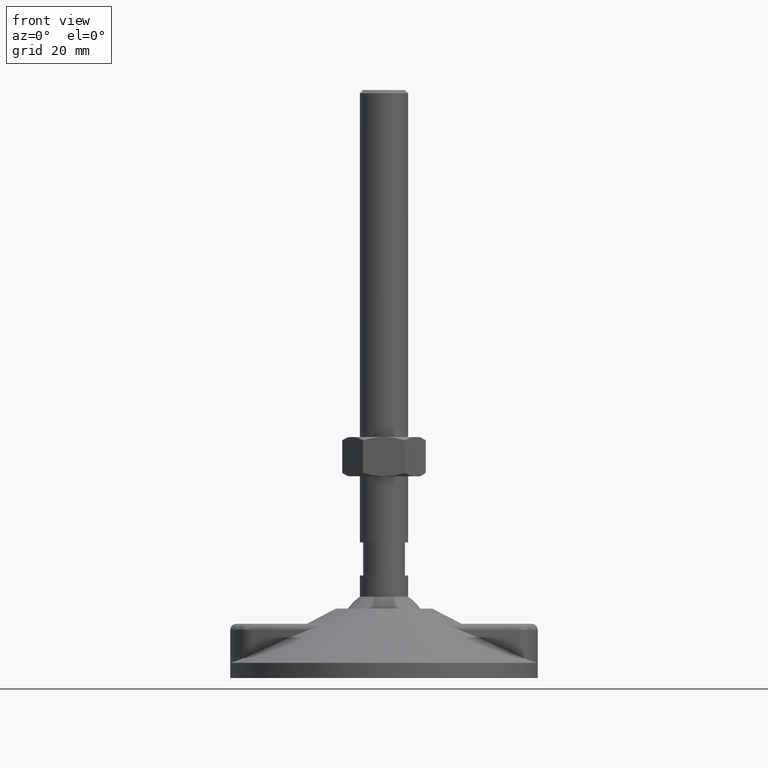
[diagram: clean part render]
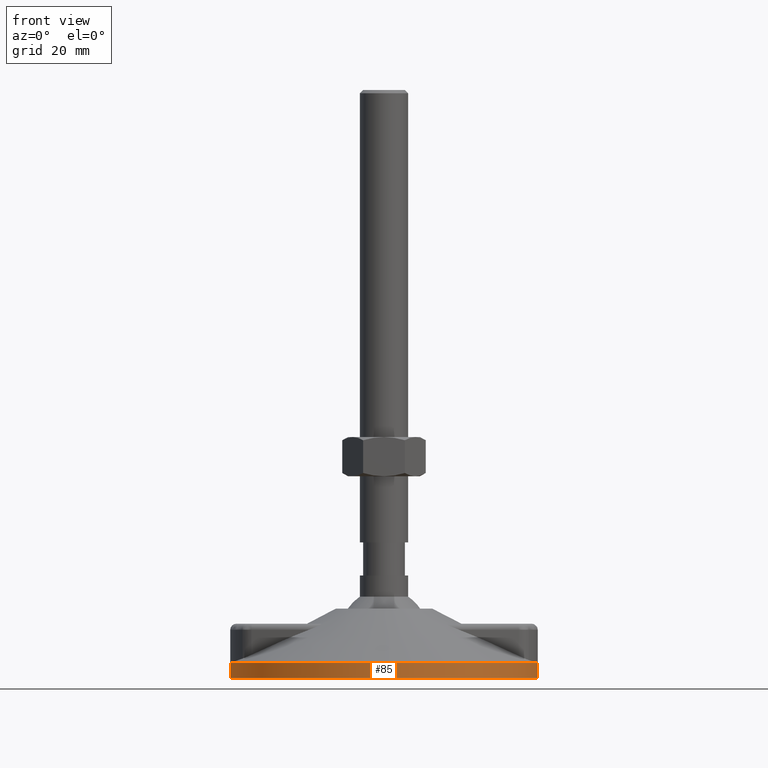
[diagram: same view with one face highlighted and labeled with its STEP entity id]
A machine part, front view. The second image highlights one B-rep face of the part: STEP entity #85.
In plain terms, the highlighted cylindrical surface (partial cylindrical patch) has radius 51 mm, axis along (0, -0, 1).
Its self-contained STEP definition (entity closure, byte-faithful):
#44=CARTESIAN_POINT('',(0.0,0.0,0.0));
#45=DIRECTION('',(0.0,-0.000000025809560,1.000000000000000));
#46=DIRECTION('',(1.0,0.0,0.0));
#47=AXIS2_PLACEMENT_3D('',#44,#45,#46);
#48=CYLINDRICAL_SURFACE('',#47,50.999999999999091);
#49=CARTESIAN_POINT('',(50.980811147480381,-1.398890540694083,-0.000000037490965));
#50=VERTEX_POINT('',#49);
#51=CARTESIAN_POINT('',(50.980811147480608,-1.398890669737739,5.000001471960742));
#52=VERTEX_POINT('',#51);
#53=CARTESIAN_POINT('',(50.980811147480381,-1.398890540695902,-0.000000037490965));
#54=DIRECTION('',(0.0,-0.000000025809633,1.000000000000000));
#55=VECTOR('',#54,5.000001509451709);
#56=LINE('',#53,#55);
#57=EDGE_CURVE('',#50,#52,#56,.T.);
#58=ORIENTED_EDGE('',*,*,#57,.T.);
#59=CARTESIAN_POINT('',(-50.999999999999091,-0.000000128900865,5.000001508065493));
#60=VERTEX_POINT('',#59);
#61=CARTESIAN_POINT('',(0.0,-0.000000129048203,5.000001508065495));
#62=DIRECTION('',(0.0,-0.000000025809560,1.000000000000000));
#63=DIRECTION('',(1.0,0.0,0.0));
#64=AXIS2_PLACEMENT_3D('',#61,#62,#63);
#65=CIRCLE('',#64,50.999999999999091);
#66=EDGE_CURVE('',#60,#52,#65,.T.);
#67=ORIENTED_EDGE('',*,*,#66,.F.);
#68=CARTESIAN_POINT('',(-50.999999999999091,1.591616E-010,-1.387217E-009));
#69=VERTEX_POINT('',#68);
#70=CARTESIAN_POINT('',(-50.999999999999091,-0.000000128907232,5.000001508065493));
#71=DIRECTION('',(0.0,0.000000025809633,-1.000000000000000));
#72=VECTOR('',#71,5.000001509452712);
#73=LINE('',#70,#72);
#74=EDGE_CURVE('',#60,#69,#73,.T.);
#75=ORIENTED_EDGE('',*,*,#74,.T.);
#76=CARTESIAN_POINT('',(0.0,0.0,0.0));
#77=DIRECTION('',(0.0,-0.000000025809560,1.000000000000000));
#78=DIRECTION('',(1.0,0.0,0.0));
#79=AXIS2_PLACEMENT_3D('',#76,#77,#78);
#80=CIRCLE('',#79,50.999999999999091);
#81=EDGE_CURVE('',#69,#50,#80,.T.);
#82=ORIENTED_EDGE('',*,*,#81,.T.);
#83=EDGE_LOOP('',(#58,#67,#75,#82));
#84=FACE_OUTER_BOUND('',#83,.T.);
#85=ADVANCED_FACE('',(#84),#48,.T.);